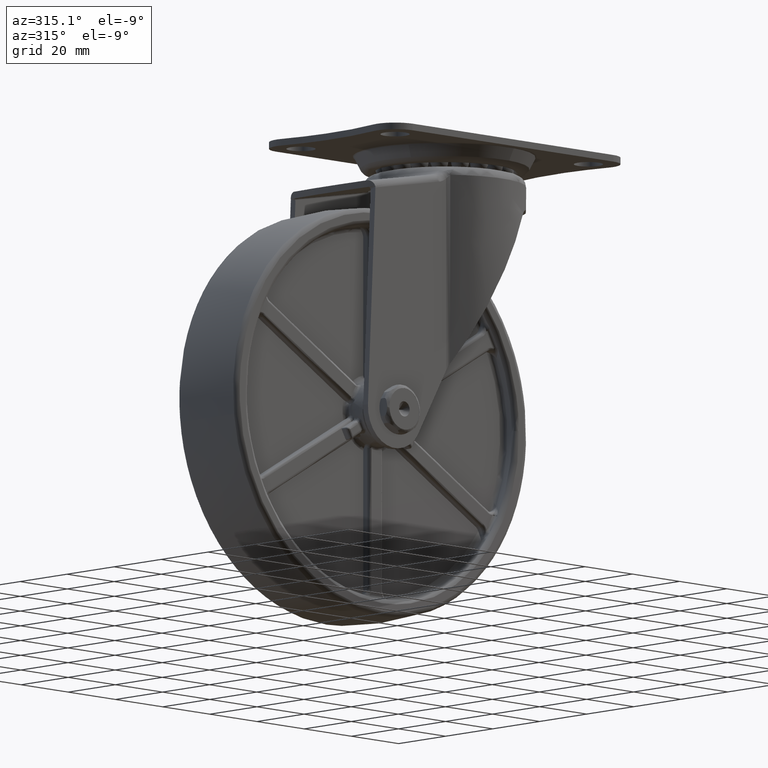
[diagram: clean part render]
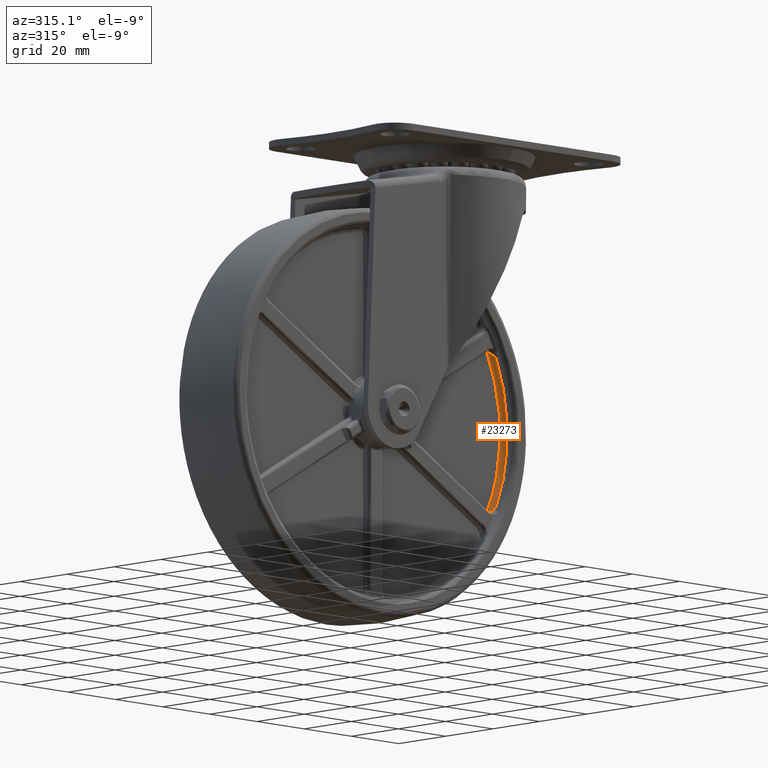
[diagram: same view with one face highlighted and labeled with its STEP entity id]
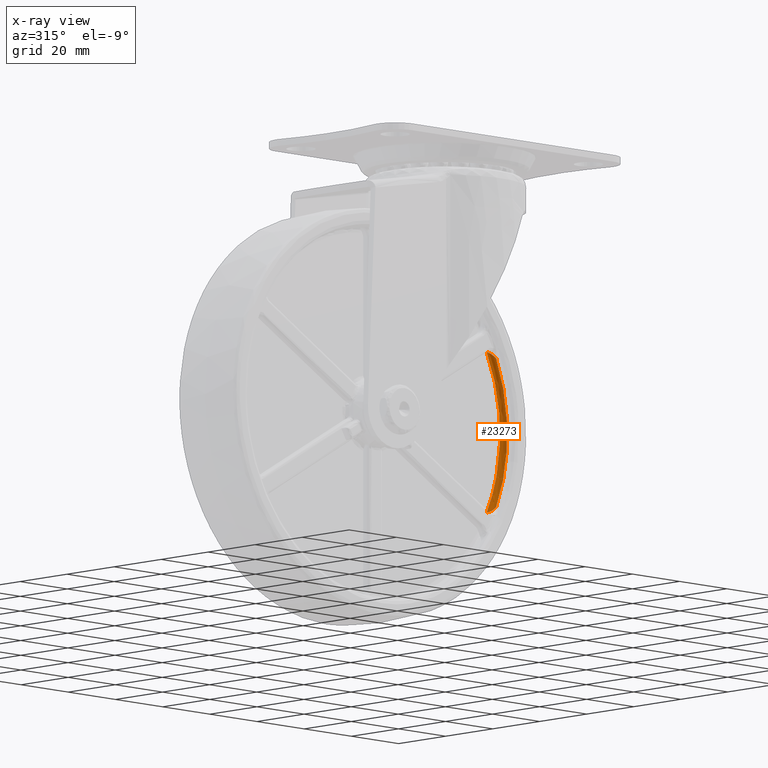
[diagram: x-ray of the same camera — body ghosted, the highlighted face saturated]
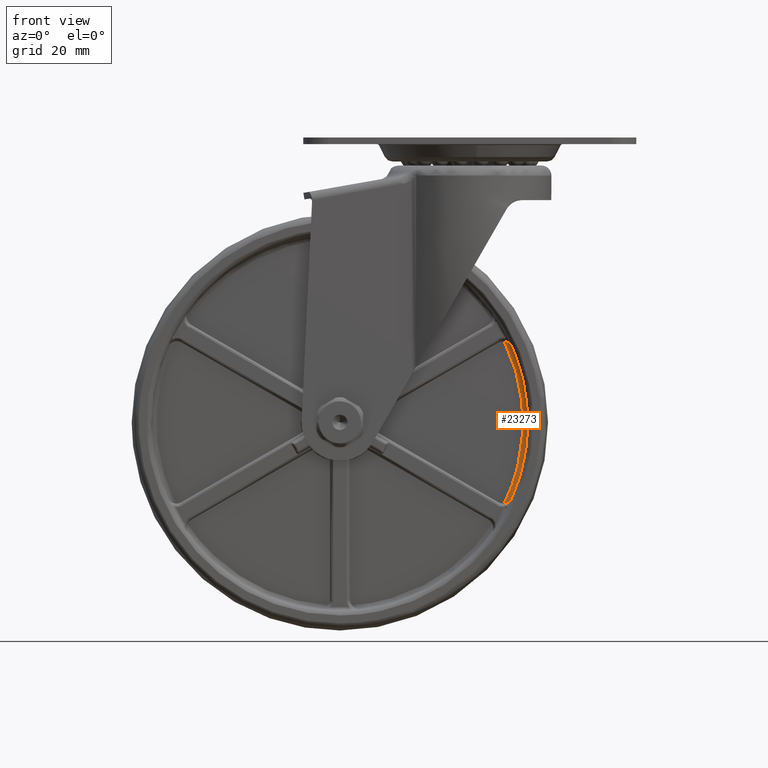
[diagram: same view with one face highlighted and labeled with its STEP entity id]
A machine part, auxiliary view. The second image highlights one B-rep face of the part: STEP entity #23273.
The next image is the same camera in x-ray: the body ghosted, the highlighted face saturated — about 0% of this face is hidden behind the body in this view.
A second angle (front view) of the same face is appended — the face is thin or edge-on in the first view.
In plain terms, the highlighted face is a freeform B-spline surface patch.
Its self-contained STEP definition (entity closure, byte-faithful):
#16499=CARTESIAN_POINT('',(12.796322213228001,-9.0,-60.912027015544801));
#16500=VERTEX_POINT('',#16499);
#16903=CARTESIAN_POINT('',(12.796322081176040,-9.0,-106.087972926868200));
#16904=VERTEX_POINT('',#16903);
#21329=CARTESIAN_POINT('',(10.310861819313921,-7.500000000000000,-59.122910140881402));
#21330=VERTEX_POINT('',#21329);
#21331=CARTESIAN_POINT('',(12.796322213228001,-9.0,-60.912027015544801));
#21332=CARTESIAN_POINT('',(12.790214386098301,-8.989430638079524,-60.898021369823958));
#21333=CARTESIAN_POINT('',(12.783854135443200,-8.978717534410977,-60.883735191626080));
#21334=CARTESIAN_POINT('',(12.771017751104811,-8.957385158903225,-60.855500815707728));
#21335=CARTESIAN_POINT('',(12.751454383203070,-8.925420791215563,-60.813341678432167));
#21336=CARTESIAN_POINT('',(12.703648052744491,-8.851106633386360,-60.716290827287622));
#21337=CARTESIAN_POINT('',(12.658992474191470,-8.787909527813891,-60.635321097248912));
#21338=CARTESIAN_POINT('',(12.564771653885520,-8.662286131042249,-60.476256940232993));
#21339=CARTESIAN_POINT('',(12.495437712451530,-8.579557503229045,-60.374035299072901));
#21340=CARTESIAN_POINT('',(12.343109253892990,-8.416816225905414,-60.177128882553752));
#21341=CARTESIAN_POINT('',(12.260126567994771,-8.336795824460609,-60.082441959048360));
#21342=CARTESIAN_POINT('',(12.124221552919449,-8.219541917490103,-59.946309549429103));
#21343=CARTESIAN_POINT('',(12.076838703072051,-8.180800128691434,-59.901779580808594));
#21344=CARTESIAN_POINT('',(11.979011157008230,-8.105255391289980,-59.815721329559842));
#21345=CARTESIAN_POINT('',(11.928541855976640,-8.068414301043648,-59.774145779895733));
#21346=CARTESIAN_POINT('',(11.772259019539920,-7.960963888553906,-59.653835603986387));
#21347=CARTESIAN_POINT('',(11.661620341295791,-7.893380301906082,-59.579486516114727));
#21348=CARTESIAN_POINT('',(11.484430894931659,-7.799845319267071,-59.477452896402582));
#21349=CARTESIAN_POINT('',(11.423485201055071,-7.769983475608665,-59.445030256687481));
#21350=CARTESIAN_POINT('',(11.297382655385791,-7.713369418804584,-59.383590173211218));
#21351=CARTESIAN_POINT('',(11.232715087489160,-7.686851787334627,-59.354826867198540));
#21352=CARTESIAN_POINT('',(11.034981183573370,-7.613943916319793,-59.275221961024208));
#21353=CARTESIAN_POINT('',(10.897678472605859,-7.573789775270197,-59.230721795768993));
#21354=CARTESIAN_POINT('',(10.681607819250660,-7.530824971785309,-59.178309575399979));
#21355=CARTESIAN_POINT('',(10.607744513966891,-7.519451612069183,-59.163262425032173));
#21356=CARTESIAN_POINT('',(10.459981110608780,-7.504092226151683,-59.138930890898060));
#21357=CARTESIAN_POINT('',(10.385654146908371,-7.499999999997888,-59.129528380524960));
#21358=CARTESIAN_POINT('',(10.310861819313921,-7.500000000000000,-59.122910140881402));
#21359=B_SPLINE_CURVE_WITH_KNOTS('',3,(#21331,#21332,#21333,#21334,#21335,#21336,#21337,#21338,#21339,#21340,#21341,#21342,#21343,#21344,#21345,#21346,#21347,#21348,#21349,#21350,#21351,#21352,#21353,#21354,#21355,#21356,#21357,#21358),.UNSPECIFIED.,.F.,.U.,(4,2,1,1,2,2,2,2,2,2,2,2,2,2,4),(0.0,0.015625000000004,0.031250000000007,0.062500000000010,0.125000000000011,0.250000000000009,0.375000000000007,0.437500000000003,0.500000000000000,0.624999999999997,0.687499999999998,0.749999999999999,0.875000000000000,0.937500000000000,1.0),.UNSPECIFIED.);
#21360=EDGE_CURVE('',#16500,#21330,#21359,.T.);
#21480=CARTESIAN_POINT('',(10.310861819313960,-7.500000000000000,-107.877089859118400));
#21481=VERTEX_POINT('',#21480);
#21482=CARTESIAN_POINT('',(10.310861819313960,-7.500000000000000,-107.877089859118400));
#21483=CARTESIAN_POINT('',(10.385654146908410,-7.499999999997893,-107.870471619474900));
#21484=CARTESIAN_POINT('',(10.459981110608830,-7.504092226151683,-107.861069109101900));
#21485=CARTESIAN_POINT('',(10.607744513967029,-7.519451612069195,-107.836737574967700));
#21486=CARTESIAN_POINT('',(10.681607819250850,-7.530824971785335,-107.821690424599890));
#21487=CARTESIAN_POINT('',(10.897678472605939,-7.573789775270210,-107.769278204230900));
#21488=CARTESIAN_POINT('',(11.034981183573480,-7.613943916319805,-107.724778038975700));
#21489=CARTESIAN_POINT('',(11.232715087489410,-7.686851787334702,-107.645173132801300));
#21490=CARTESIAN_POINT('',(11.297382655386169,-7.713369418804727,-107.616409826788600));
#21491=CARTESIAN_POINT('',(11.423485201055341,-7.769983475608768,-107.554969743312300));
#21492=CARTESIAN_POINT('',(11.484430894931879,-7.799845319267154,-107.522547103597200));
#21493=CARTESIAN_POINT('',(11.661620341295921,-7.893380301906131,-107.420513483885100));
#21494=CARTESIAN_POINT('',(11.772259019540019,-7.960963888553933,-107.346164396013510));
#21495=CARTESIAN_POINT('',(11.928541855976739,-8.068414301043681,-107.225854220104100));
#21496=CARTESIAN_POINT('',(11.979011157008321,-8.105255391290022,-107.184278670440090));
#21497=CARTESIAN_POINT('',(12.076838703072189,-8.180800128691498,-107.098220419191190));
#21498=CARTESIAN_POINT('',(12.124221552919590,-8.219541917490176,-107.053690450570700));
#21499=CARTESIAN_POINT('',(12.260126567994860,-8.336795824460653,-106.917558040951500));
#21500=CARTESIAN_POINT('',(12.343109253893060,-8.416816225905428,-106.822871117446200));
#21501=CARTESIAN_POINT('',(12.495437712451571,-8.579557503229022,-106.625964700927100));
#21502=CARTESIAN_POINT('',(12.564771653885540,-8.662286131042256,-106.523743059767000));
#21503=CARTESIAN_POINT('',(12.658992474191470,-8.787909527813909,-106.364678902751090));
#21504=CARTESIAN_POINT('',(12.703648052744530,-8.851106633386220,-106.283709172712310));
#21505=CARTESIAN_POINT('',(12.751454383203050,-8.925420791215602,-106.186658321567900));
#21506=CARTESIAN_POINT('',(12.771017751104781,-8.957385158903316,-106.144499184292400));
#21507=CARTESIAN_POINT('',(12.783854135443130,-8.978717534411233,-106.116264808374100));
#21508=CARTESIAN_POINT('',(12.790214386096880,-8.989430638084855,-106.101978630179400));
#21509=CARTESIAN_POINT('',(12.796322081176040,-9.0,-106.087972926868200));
#21510=B_SPLINE_CURVE_WITH_KNOTS('',3,(#21482,#21483,#21484,#21485,#21486,#21487,#21488,#21489,#21490,#21491,#21492,#21493,#21494,#21495,#21496,#21497,#21498,#21499,#21500,#21501,#21502,#21503,#21504,#21505,#21506,#21507,#21508,#21509),.UNSPECIFIED.,.F.,.U.,(4,2,2,2,2,2,2,2,2,2,2,1,1,2,4),(0.0,0.062499999999999,0.124999999999998,0.249999999999995,0.312499999999995,0.374999999999994,0.499999999999998,0.562499999999996,0.624999999999995,0.749999999999999,0.875000000000004,0.937500000000006,0.968750000000008,0.984375000000004,1.0),.UNSPECIFIED.);
#21511=EDGE_CURVE('',#21481,#16904,#21510,.T.);
#23226=CARTESIAN_POINT('',(10.500827106061228,-9.104305743886076,-56.254205900111202));
#23227=CARTESIAN_POINT('',(25.497208017981812,-9.104305743886076,-83.499998627460883));
#23228=CARTESIAN_POINT('',(10.500828265674729,-9.104305743886076,-110.745791993074420));
#23229=CARTESIAN_POINT('',(10.605899369701277,-7.383694284383106,-56.196372982398294));
#23230=CARTESIAN_POINT('',(25.634112147490441,-7.383694284383104,-83.499998624547501));
#23231=CARTESIAN_POINT('',(10.605900531776213,-7.383694284383107,-110.803624906315360));
#23232=CARTESIAN_POINT('',(9.098533837373127,-7.503630951586415,-57.026043380411764));
#23233=CARTESIAN_POINT('',(23.670087019397162,-7.503630951586416,-83.499998666343117));
#23234=CARTESIAN_POINT('',(9.098534964136304,-7.503630951586417,-109.973954572457150));
#23242=(BOUNDED_SURFACE()B_SPLINE_SURFACE(2,2,((#23226,#23229,#23232),(#23227,#23230,#23233),(#23228,#23231,#23234)),.UNSPECIFIED.,.F.,.F.,.U.)B_SPLINE_SURFACE_WITH_KNOTS((3,3),(3,3),(0.0,58.091397411576033),(0.0,2.733560961484540),.UNSPECIFIED.)GEOMETRIC_REPRESENTATION_ITEM()RATIONAL_B_SPLINE_SURFACE(((0.855981537436148,0.561716437202622,0.855981515876057),(0.749894499305864,0.492099476455537,0.749894480417847),(0.855981528072322,0.561716431057846,0.855981506512231)))REPRESENTATION_ITEM('')SURFACE());
#23243=CARTESIAN_POINT('',(12.796322213228089,-9.0,-60.912027015544759));
#23244=CARTESIAN_POINT('',(22.646761428701481,-9.0,-83.499999999999915));
#23245=CARTESIAN_POINT('',(12.796322081176040,-9.0,-106.087972926868200));
#23253=(BOUNDED_CURVE()B_SPLINE_CURVE(2,(#23243,#23244,#23245),.UNSPECIFIED.,.F.,.U.)CURVE()GEOMETRIC_REPRESENTATION_ITEM()QUASI_UNIFORM_CURVE()RATIONAL_B_SPLINE_CURVE((1.0,0.916630552690986,1.0))REPRESENTATION_ITEM(''));
#23254=EDGE_CURVE('',#16500,#16904,#23253,.T.);
#23255=ORIENTED_EDGE('',*,*,#23254,.F.);
#23256=ORIENTED_EDGE('',*,*,#21360,.T.);
#23257=CARTESIAN_POINT('',(10.310861819314010,-7.500000000000000,-59.122910140881373));
#23258=CARTESIAN_POINT('',(22.361807352916315,-7.500000000000000,-83.499999999999901));
#23259=CARTESIAN_POINT('',(10.310861819314100,-7.500000000000000,-107.877089859118500));
#23267=(BOUNDED_CURVE()B_SPLINE_CURVE(2,(#23257,#23258,#23259),.UNSPECIFIED.,.F.,.U.)CURVE()GEOMETRIC_REPRESENTATION_ITEM()QUASI_UNIFORM_CURVE()RATIONAL_B_SPLINE_CURVE((1.0,0.896442060182989,1.0))REPRESENTATION_ITEM(''));
#23268=EDGE_CURVE('',#21330,#21481,#23267,.T.);
#23269=ORIENTED_EDGE('',*,*,#23268,.T.);
#23270=ORIENTED_EDGE('',*,*,#21511,.T.);
#23271=EDGE_LOOP('',(#23255,#23256,#23269,#23270));
#23272=FACE_OUTER_BOUND('',#23271,.T.);
#23273=ADVANCED_FACE('',(#23272),#23242,.F.);